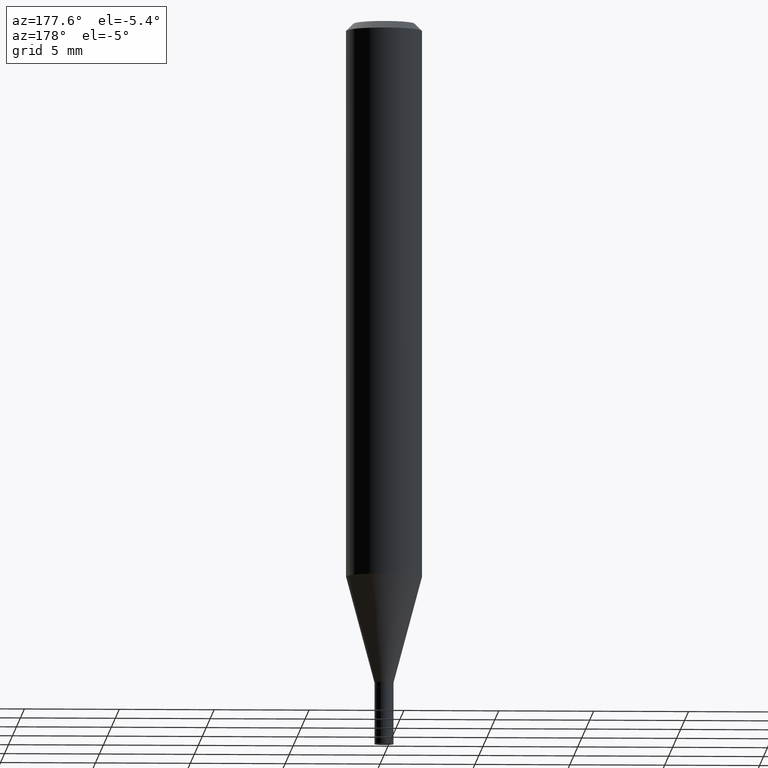
[diagram: clean part render]
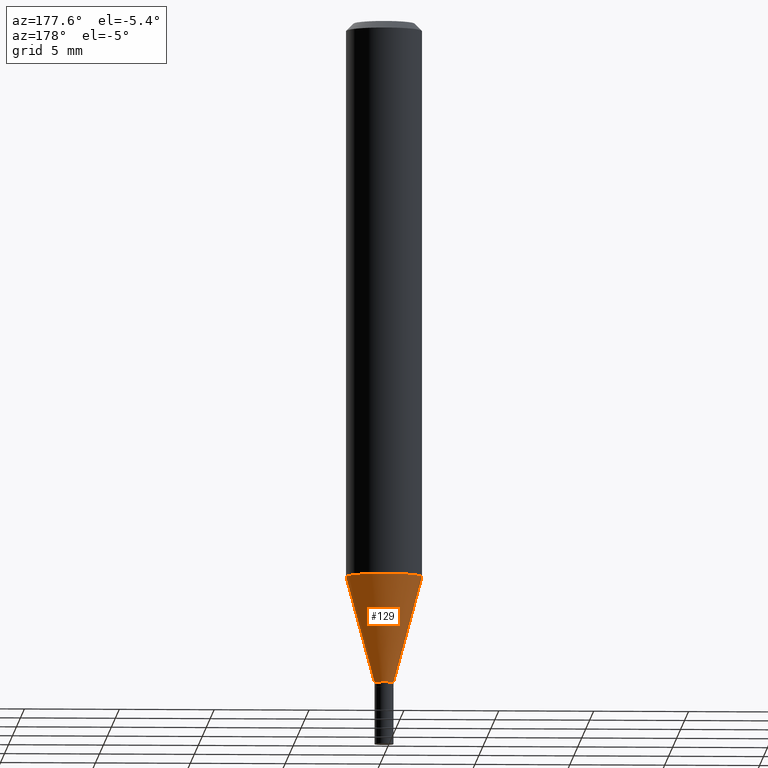
[diagram: same view with one face highlighted and labeled with its STEP entity id]
A machine part, auxiliary view. The second image highlights one B-rep face of the part: STEP entity #129.
In plain terms, the highlighted conical surface has half-angle 15 deg.
Its self-contained STEP definition (entity closure, byte-faithful):
#2 = EDGE_CURVE ( 'NONE', #303, #4, #144, .T. ) ;
#4 = VERTEX_POINT ( 'NONE', #46 ) ;
#6 = ORIENTED_EDGE ( 'NONE', *, *, #391, .F. ) ;
#11 = CARTESIAN_POINT ( 'NONE',  ( -0.01969999999999963794, -4.650335477948058966E-15, -1.372000000000000108 ) ) ;
#44 = LINE ( 'NONE', #68, #443 ) ;
#46 = CARTESIAN_POINT ( 'NONE',  ( -0.07874999999999997280, -3.461315713929970124E-15, -1.151622399813057029 ) ) ;
#61 = CARTESIAN_POINT ( 'NONE',  ( 0.01969999999999963794, -4.927876761643212756E-15, -1.372000000000000108 ) ) ;
#68 = CARTESIAN_POINT ( 'NONE',  ( 0.01969999999999963794, -4.927876761643212756E-15, -1.372000000000000108 ) ) ;
#74 = ORIENTED_EDGE ( 'NONE', *, *, #429, .T. ) ;
#79 = LINE ( 'NONE', #11, #426 ) ;
#80 = AXIS2_PLACEMENT_3D ( 'NONE', #235, #267, #417 ) ;
#100 = AXIS2_PLACEMENT_3D ( 'NONE', #145, #394, #257 ) ;
#113 = ORIENTED_EDGE ( 'NONE', *, *, #313, .T. ) ;
#129 = ADVANCED_FACE ( 'NONE', ( #392 ), #428, .T. ) ;
#144 = CIRCLE ( 'NONE', #80, 0.07875000000000000056 ) ;
#145 = CARTESIAN_POINT ( 'NONE',  ( 3.355183202086007133E-29, -4.790312396892795908E-15, -1.372000000000000108 ) ) ;
#184 = VERTEX_POINT ( 'NONE', #61 ) ;
#185 = CARTESIAN_POINT ( 'NONE',  ( 0.07874999999999997280, -4.570776429208843061E-15, -1.151622399813057029 ) ) ;
#193 = DIRECTION ( 'NONE',  ( -0.2588190451025214611, 5.211531920934551042E-15, 0.9659258262890682012 ) ) ;
#217 = DIRECTION ( 'NONE',  ( 0.2588190451025214611, 1.565188264969621573E-15, 0.9659258262890682012 ) ) ;
#224 = AXIS2_PLACEMENT_3D ( 'NONE', #455, #287, #355 ) ;
#233 = CIRCLE ( 'NONE', #100, 0.01969999999999963794 ) ;
#235 = CARTESIAN_POINT ( 'NONE',  ( 2.816256655246898649E-29, -4.020868118341048926E-15, -1.151622399813057029 ) ) ;
#257 = DIRECTION ( 'NONE',  ( 1.000000000000000000, -6.982962677686258822E-15, 0.000000000000000000 ) ) ;
#267 = DIRECTION ( 'NONE',  ( -2.445468806185136597E-29, 3.491481338843145583E-15, 1.000000000000000000 ) ) ;
#287 = DIRECTION ( 'NONE',  ( -2.445468806185136597E-29, 3.491481338843145583E-15, 1.000000000000000000 ) ) ;
#302 = CARTESIAN_POINT ( 'NONE',  ( -0.01969999999999963794, -4.055825595939014545E-15, -1.372000000000000108 ) ) ;
#303 = VERTEX_POINT ( 'NONE', #185 ) ;
#313 = EDGE_CURVE ( 'NONE', #184, #338, #233, .T. ) ;
#338 = VERTEX_POINT ( 'NONE', #302 ) ;
#355 = DIRECTION ( 'NONE',  ( 1.000000000000000000, -6.982962677686258822E-15, 0.000000000000000000 ) ) ;
#373 = EDGE_LOOP ( 'NONE', ( #113, #74, #393, #6 ) ) ;
#391 = EDGE_CURVE ( 'NONE', #184, #303, #44, .T. ) ;
#392 = FACE_OUTER_BOUND ( 'NONE', #373, .T. ) ;
#393 = ORIENTED_EDGE ( 'NONE', *, *, #2, .F. ) ;
#394 = DIRECTION ( 'NONE',  ( -2.445468806185136597E-29, 3.491481338843145583E-15, 1.000000000000000000 ) ) ;
#417 = DIRECTION ( 'NONE',  ( 1.000000000000000000, -6.982962677686268288E-15, 0.000000000000000000 ) ) ;
#426 = VECTOR ( 'NONE', #193, 39.37007874015747433 ) ;
#428 = CONICAL_SURFACE ( 'NONE', #224, 0.01969999999999963794, 0.2617993877991501295 ) ;
#429 = EDGE_CURVE ( 'NONE', #338, #4, #79, .T. ) ;
#443 = VECTOR ( 'NONE', #217, 39.37007874015747433 ) ;
#455 = CARTESIAN_POINT ( 'NONE',  ( 3.355183202086007133E-29, -4.790312396892795908E-15, -1.372000000000000108 ) ) ;